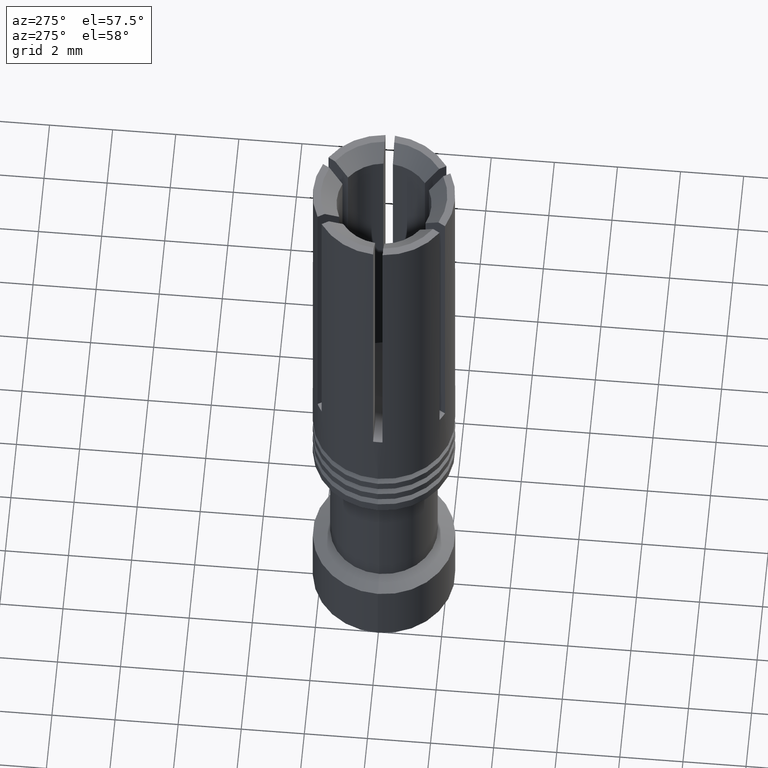
[diagram: clean part render]
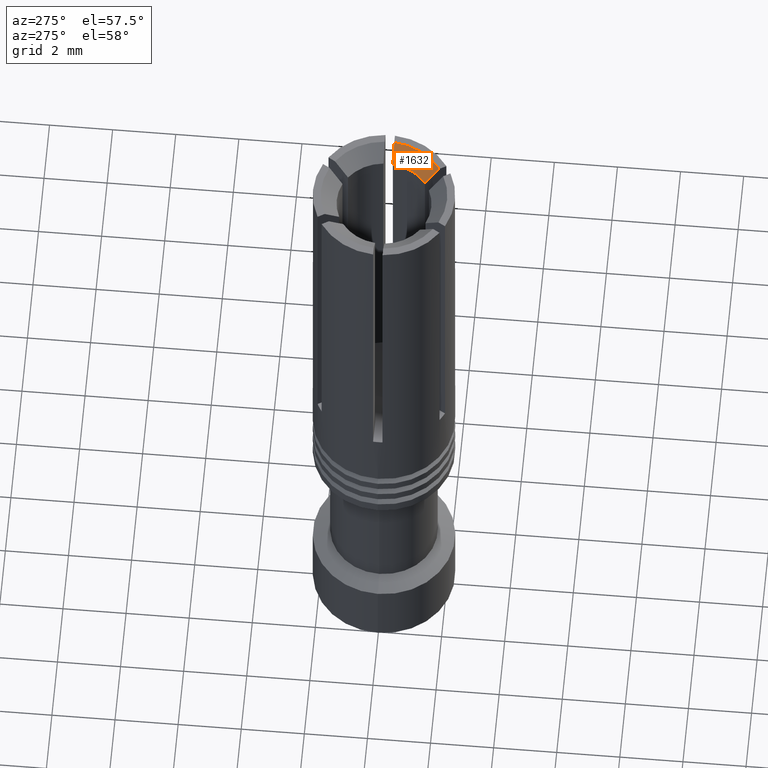
[diagram: same view with one face highlighted and labeled with its STEP entity id]
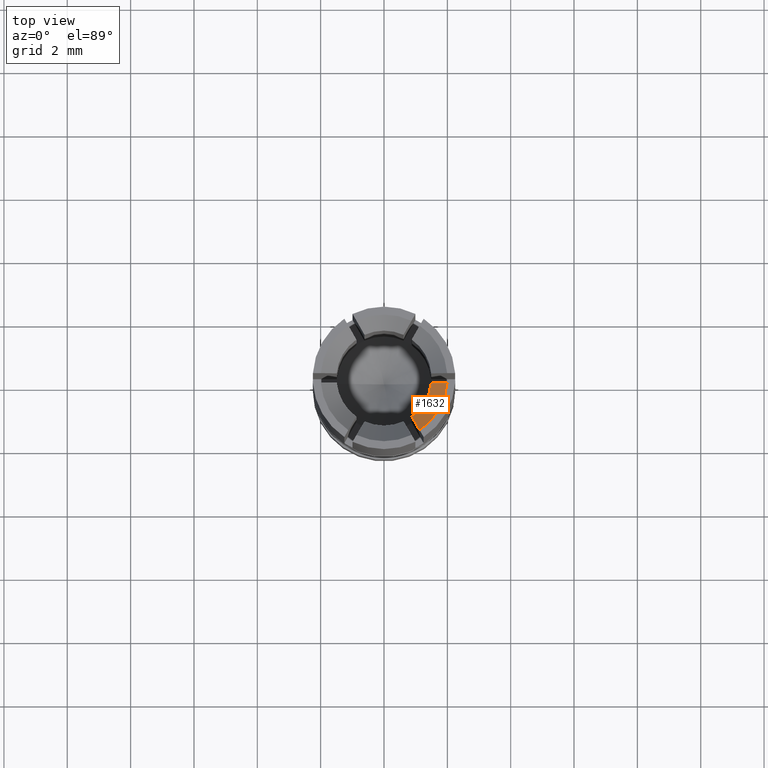
[diagram: same view with one face highlighted and labeled with its STEP entity id]
A machine part, auxiliary view. The second image highlights one B-rep face of the part: STEP entity #1632.
A second angle (top view) of the same face is appended — the face is thin or edge-on in the first view.
In plain terms, the highlighted conical surface has half-angle 45 deg.
Its self-contained STEP definition (entity closure, byte-faithful):
#26 = VERTEX_POINT ( 'NONE', #2220 ) ;
#56 = DIRECTION ( 'NONE',  ( 0.000000000000000000, 0.000000000000000000, 1.000000000000000000 ) ) ;
#95 = CARTESIAN_POINT ( 'NONE',  ( 1.994367067517909931, -0.1499999999999999944, 360.0000000000000000 ) ) ;
#120 = AXIS2_PLACEMENT_3D ( 'NONE', #1006, #667, #647 ) ;
#170 = VERTEX_POINT ( 'NONE', #635 ) ;
#328 = ORIENTED_EDGE ( 'NONE', *, *, #493, .F. ) ;
#344 = ORIENTED_EDGE ( 'NONE', *, *, #473, .F. ) ;
#424 = EDGE_CURVE ( 'NONE', #170, #1612, #499, .T. ) ;
#473 = EDGE_CURVE ( 'NONE', #1177, #26, #483, .T. ) ;
#483 = CIRCLE ( 'NONE', #120, 2.000000000000000000 ) ;
#488 = CARTESIAN_POINT ( 'NONE',  ( 1.509813785565099931, -0.1499999999999999944, 359.5172457490079978 ) ) ;
#493 = EDGE_CURVE ( 'NONE', #1612, #1177, #1078, .T. ) ;
#499 = CIRCLE ( 'NONE', #1727, 1.500000000000000000 ) ;
#610 = CARTESIAN_POINT ( 'NONE',  ( 1.043479046802370025, -1.507358725695250090, 359.8332543648459705 ) ) ;
#634 = CARTESIAN_POINT ( 'NONE',  ( 1.544474689921919941, -0.1499999999999999944, 359.5517416240499529 ) ) ;
#635 = CARTESIAN_POINT ( 'NONE',  ( 0.8761443883976299807, -1.217526595471060125, 359.5000000000000000 ) ) ;
#647 = DIRECTION ( 'NONE',  ( 1.000000000000000000, 0.000000000000000000, 0.000000000000000000 ) ) ;
#664 = ORIENTED_EDGE ( 'NONE', *, *, #1471, .F. ) ;
#667 = DIRECTION ( 'NONE',  ( 0.000000000000000000, 0.000000000000000000, -1.000000000000000000 ) ) ;
#815 = CARTESIAN_POINT ( 'NONE',  ( 1.694517649396199976, -0.1499999999999999944, 359.7010819199579714 ) ) ;
#821 = CONICAL_SURFACE ( 'NONE', #1258, 2.000000000000000000, 0.7853981625000003852 ) ;
#915 = DIRECTION ( 'NONE',  ( 1.108007010603949940E-16, 0.000000000000000000, 1.000000000000000000 ) ) ;
#1006 = CARTESIAN_POINT ( 'NONE',  ( 5.421010862427519705E-17, -2.168404344971009854E-16, 360.0000000000000000 ) ) ;
#1078 = B_SPLINE_CURVE_WITH_KNOTS ( 'NONE', 3,
 ( #1379, #488, #1181, #634, #815, #1681, #1671 ),
 .UNSPECIFIED., .F., .F.,
 ( 4, 3, 4 ),
 ( 0.000000000000000000, 0.1035399730795429907, 1.000000000000000000 ),
 .UNSPECIFIED. ) ;
#1177 = VERTEX_POINT ( 'NONE', #95 ) ;
#1181 = CARTESIAN_POINT ( 'NONE',  ( 1.527144915128229918, -0.1499999999999999944, 359.5344930060220463 ) ) ;
#1213 = CARTESIAN_POINT ( 'NONE',  ( 1.492481155659930003, -0.1499999999999999944, 359.5000000000000000 ) ) ;
#1258 = AXIS2_PLACEMENT_3D ( 'NONE', #1599, #915, #1457 ) ;
#1297 = CARTESIAN_POINT ( 'NONE',  ( 1.127087344326620055, -1.652172544941589827, 360.0000000000000000 ) ) ;
#1309 = CARTESIAN_POINT ( 'NONE',  ( 0.9598445415695560090, -1.362499513366130177, 359.6665612017799845 ) ) ;
#1379 = CARTESIAN_POINT ( 'NONE',  ( 1.492481155659930003, -0.1499999999999999944, 359.5000000000000000 ) ) ;
#1429 = ORIENTED_EDGE ( 'NONE', *, *, #424, .F. ) ;
#1433 = B_SPLINE_CURVE_WITH_KNOTS ( 'NONE', 3,
 ( #1297, #610, #1309, #1978 ),
 .UNSPECIFIED., .F., .F.,
 ( 4, 4 ),
 ( 0.000000000000000000, 1.000000000000000000 ),
 .UNSPECIFIED. ) ;
#1434 = FACE_OUTER_BOUND ( 'NONE', #1605, .T. ) ;
#1457 = DIRECTION ( 'NONE',  ( 1.000000000000000000, 0.000000000000000000, 0.000000000000000000 ) ) ;
#1471 = EDGE_CURVE ( 'NONE', #26, #170, #1433, .T. ) ;
#1599 = CARTESIAN_POINT ( 'NONE',  ( 5.421010862427519705E-17, -2.168404344971009854E-16, 360.0000000000000000 ) ) ;
#1605 = EDGE_LOOP ( 'NONE', ( #328, #1429, #664, #344 ) ) ;
#1612 = VERTEX_POINT ( 'NONE', #1213 ) ;
#1632 = ADVANCED_FACE ( 'NONE', ( #1434 ), #821, .F. ) ;
#1671 = CARTESIAN_POINT ( 'NONE',  ( 1.994367067517909931, -0.1499999999999999944, 360.0000000000000000 ) ) ;
#1681 = CARTESIAN_POINT ( 'NONE',  ( 1.844464078025519926, -0.1499999999999999944, 359.8505192072170189 ) ) ;
#1727 = AXIS2_PLACEMENT_3D ( 'NONE', #1992, #56, #1966 ) ;
#1966 = DIRECTION ( 'NONE',  ( 1.000000000000000000, 0.000000000000000000, 0.000000000000000000 ) ) ;
#1978 = CARTESIAN_POINT ( 'NONE',  ( 0.8761443883976299807, -1.217526595471060125, 359.5000000000000000 ) ) ;
#1992 = CARTESIAN_POINT ( 'NONE',  ( 5.421010862427519705E-17, -2.168404344971009854E-16, 359.5000000000000000 ) ) ;
#2220 = CARTESIAN_POINT ( 'NONE',  ( 1.127087344326620055, -1.652172544941589827, 360.0000000000000000 ) ) ;